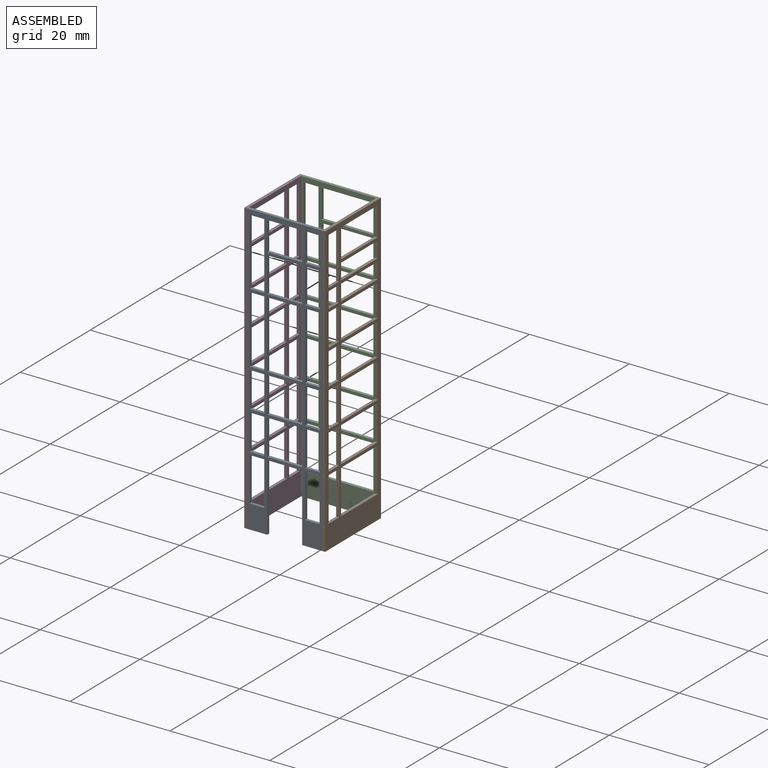
[diagram: assembled view]
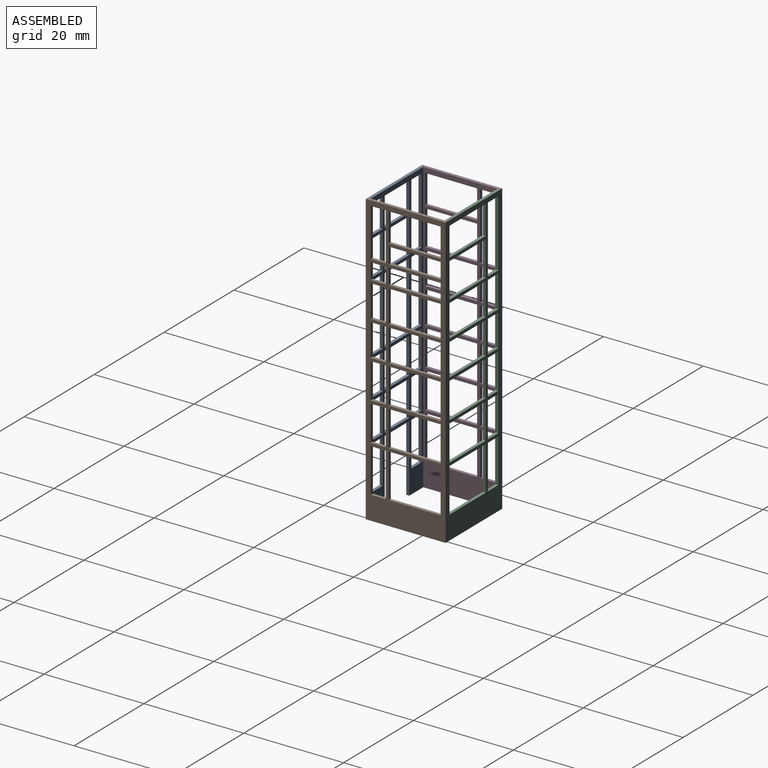
[diagram: assembled view, second angle]
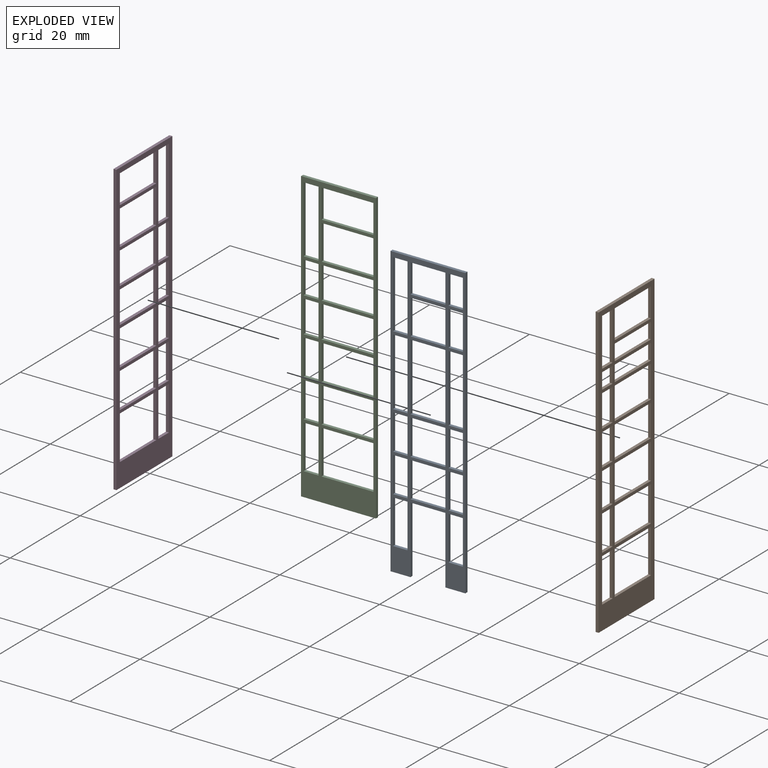
[diagram: exploded view]
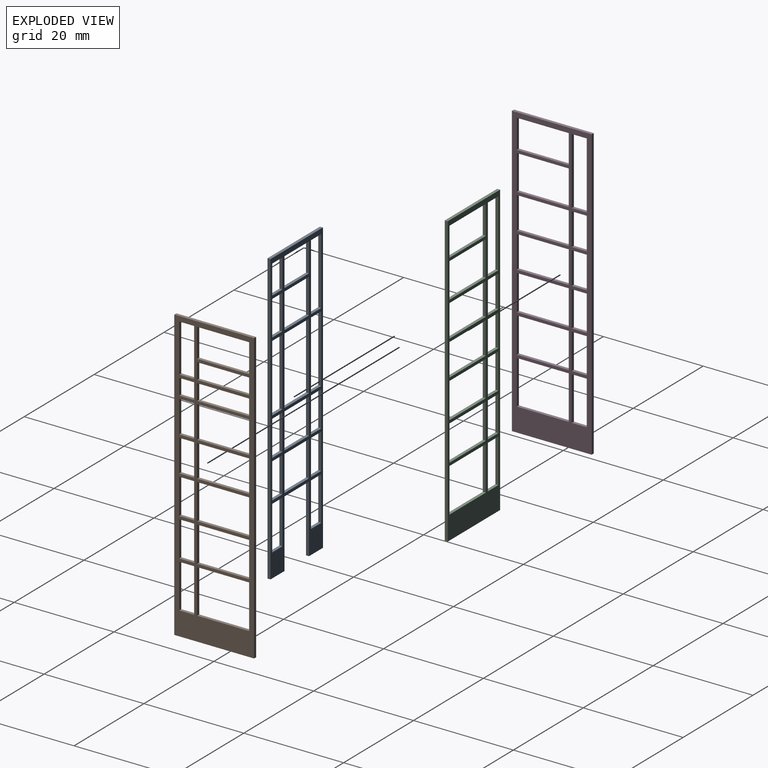
[diagram: exploded view, second angle]
ASSEMBLY  parts=4 mates=3
PART A: 74 faces, bbox 15x0.6x58 mm
  f0: plane 58x0.6mm, normal (-1,0,0), area 34.8mm2, adj f1,f2,f3,f66
  f1: plane 58x15mm, normal (0,-1,0), area 204.3mm2, adj f0,f3,f4,f5,f6,f7,f8,f9
  f2: plane 58x15mm, normal (0,1,0), area 204.3mm2, adj f0,f3,f4,f5,f6,f7,f8,f9
  f3: plane 4x0.6mm, normal (0,0,-1), area 2.4mm2, adj f0,f1,f2,f4
  f4: plane 13.5x0.6mm, normal (1,0,0), area 8.1mm2, adj f1,f2,f3,f5
  f5: plane 7x0.6mm, normal (0,0,-1), area 4.2mm2, adj f1,f2,f4,f6
  f6: plane 13.5x0.6mm, normal (-1,0,0), area 8.1mm2, adj f1,f2,f5,f7
  f7: plane 4x0.6mm, normal (0,0,-1), area 2.4mm2, adj f1,f2,f6,f73
  f8: plane 2.9x0.6mm, normal (0,0,1), area 1.7mm2, adj f1,f2,f9,f70
  f9: plane 8.8x0.6mm, normal (1,0,0), area 5.3mm2, adj f1,f2,f8,f10
  f10: plane 2.9x0.6mm, normal (0,0,-1), area 1.7mm2, adj f1,f2,f9,f70
  f11: plane 8.8x0.6mm, normal (1,0,0), area 5.3mm2, adj f1,f2,f12,f14
  f12: plane 2.9x0.6mm, normal (0,0,-1), area 1.7mm2, adj f1,f2,f11,f13
  f13: plane 8.8x0.6mm, normal (-1,0,0), area 5.3mm2, adj f1,f2,f12,f14
  f14: plane 2.9x0.6mm, normal (0,0,1), area 1.7mm2, adj f1,f2,f11,f13
  f15: plane 2.9x0.6mm, normal (0,0,-1), area 1.7mm2, adj f1,f2,f17,f69
  f16: plane 2.9x0.6mm, normal (0,0,1), area 1.7mm2, adj f1,f2,f17,f69
  f17: plane 13.5x0.6mm, normal (1,0,0), area 8.1mm2, adj f1,f2,f15,f16
  f18: plane 2.9x0.6mm, normal (0,0,-1), area 1.7mm2, adj f1,f2,f19,f21
  f19: plane 7.1x0.6mm, normal (-1,0,0), area 4.3mm2, adj f1,f2,f18,f20
  f20: plane 2.9x0.6mm, normal (0,0,1), area 1.7mm2, adj f1,f2,f19,f21
  f21: plane 7.1x0.6mm, normal (1,0,0), area 4.3mm2, adj f1,f2,f18,f20
  f22: plane 2.9x0.6mm, normal (0,0,-1), area 1.7mm2, adj f1,f2,f23,f25
  f23: plane 7.1x0.6mm, normal (-1,0,0), area 4.3mm2, adj f1,f2,f22,f24
  f24: plane 2.9x0.6mm, normal (0,0,1), area 1.7mm2, adj f1,f2,f23,f25
  f25: plane 7.1x0.6mm, normal (1,0,0), area 4.3mm2, adj f1,f2,f22,f24
  f26: plane 7x0.6mm, normal (0,0,-1), area 4.2mm2, adj f1,f2,f27,f29
  f27: plane 7.1x0.6mm, normal (-1,0,0), area 4.3mm2, adj f1,f2,f26,f28
  f28: plane 7x0.6mm, normal (0,0,1), area 4.2mm2, adj f1,f2,f27,f29
  f29: plane 7.1x0.6mm, normal (1,0,0), area 4.3mm2, adj f1,f2,f26,f28
  f30: plane 7x0.6mm, normal (0,0,-1), area 4.2mm2, adj f1,f2,f31,f33
  f31: plane 7.1x0.6mm, normal (-1,0,0), area 4.3mm2, adj f1,f2,f30,f32
  f32: plane 7x0.6mm, normal (0,0,1), area 4.2mm2, adj f1,f2,f31,f33
  f33: plane 7.1x0.6mm, normal (1,0,0), area 4.3mm2, adj f1,f2,f30,f32
  f34: plane 2.9x0.6mm, normal (0,0,-1), area 1.7mm2, adj f1,f2,f36,f72
  f35: plane 2.9x0.6mm, normal (0,0,1), area 1.7mm2, adj f1,f2,f36,f72
  f36: plane 7.1x0.6mm, normal (1,0,0), area 4.3mm2, adj f1,f2,f34,f35
  f37: plane 2.9x0.6mm, normal (0,0,-1), area 1.7mm2, adj f1,f2,f39,f71
  f38: plane 2.9x0.6mm, normal (0,0,1), area 1.7mm2, adj f1,f2,f39,f71
  f39: plane 7.1x0.6mm, normal (1,0,0), area 4.3mm2, adj f1,f2,f37,f38
  f40: plane 2.9x0.6mm, normal (0,0,-1), area 1.7mm2, adj f1,f2,f41,f43
  f41: plane 13.5x0.6mm, normal (-1,0,0), area 8.1mm2, adj f1,f2,f40,f42
  f42: plane 2.9x0.6mm, normal (0,0,1), area 1.7mm2, adj f1,f2,f41,f43
  f43: plane 13.5x0.6mm, normal (1,0,0), area 8.1mm2, adj f1,f2,f40,f42
  f44: plane 7x0.6mm, normal (0,0,-1), area 4.2mm2, adj f1,f2,f45,f47
  f45: plane 13.5x0.6mm, normal (-1,0,0), area 8.1mm2, adj f1,f2,f44,f46
  f46: plane 7x0.6mm, normal (0,0,1), area 4.2mm2, adj f1,f2,f45,f47
  f47: plane 13.5x0.6mm, normal (1,0,0), area 8.1mm2, adj f1,f2,f44,f46
  f48: plane 2.9x0.6mm, normal (0,0,-1), area 1.7mm2, adj f1,f2,f50,f68
  f49: plane 2.9x0.6mm, normal (0,0,1), area 1.7mm2, adj f1,f2,f50,f68
  f50: plane 7x0.6mm, normal (1,0,0), area 4.2mm2, adj f1,f2,f48,f49
  f51: plane 2.9x0.6mm, normal (0,0,-1), area 1.7mm2, adj f1,f2,f52,f54
  f52: plane 13.4x0.6mm, normal (-1,0,0), area 8mm2, adj f1,f2,f51,f53
  f53: plane 2.9x0.6mm, normal (0,0,1), area 1.7mm2, adj f1,f2,f52,f54
  f54: plane 13.4x0.6mm, normal (1,0,0), area 8mm2, adj f1,f2,f51,f53
  f55: plane 2.9x0.6mm, normal (0,0,-1), area 1.7mm2, adj f1,f2,f57,f67
  f56: plane 2.9x0.6mm, normal (0,0,1), area 1.7mm2, adj f1,f2,f57,f67
  f57: plane 5.8x0.6mm, normal (1,0,0), area 3.5mm2, adj f1,f2,f55,f56
  f58: plane 7x0.6mm, normal (0,0,-1), area 4.2mm2, adj f1,f2,f59,f61
  f59: plane 5.8x0.6mm, normal (-1,0,0), area 3.5mm2, adj f1,f2,f58,f60
  f60: plane 7x0.6mm, normal (0,0,1), area 4.2mm2, adj f1,f2,f59,f61
  f61: plane 5.8x0.6mm, normal (1,0,0), area 3.5mm2, adj f1,f2,f58,f60
  f62: plane 7x0.6mm, normal (0,0,-1), area 4.2mm2, adj f1,f2,f63,f65
  f63: plane 7x0.6mm, normal (-1,0,0), area 4.2mm2, adj f1,f2,f62,f64
  f64: plane 7x0.6mm, normal (0,0,1), area 4.2mm2, adj f1,f2,f63,f65
  f65: plane 7x0.6mm, normal (1,0,0), area 4.2mm2, adj f1,f2,f62,f64
  f66: plane 15x0.6mm, normal (0,0,1), area 9mm2, adj f0,f1,f2,f73
  f67: plane 5.8x0.6mm, normal (-1,0,0), area 3.5mm2, adj f1,f2,f55,f56
  f68: plane 7x0.6mm, normal (-1,0,0), area 4.2mm2, adj f1,f2,f48,f49
  f69: plane 13.5x0.6mm, normal (-1,0,0), area 8.1mm2, adj f1,f2,f15,f16
  f70: plane 8.8x0.6mm, normal (-1,0,0), area 5.3mm2, adj f1,f2,f8,f10
  f71: plane 7.1x0.6mm, normal (-1,0,0), area 4.3mm2, adj f1,f2,f37,f38
  f72: plane 7.1x0.6mm, normal (-1,0,0), area 4.3mm2, adj f1,f2,f34,f35
  f73: plane 58x0.6mm, normal (1,0,0), area 34.8mm2, adj f1,f2,f7,f66
PART B: 66 faces, bbox 16x0.6x58 mm
  f0: plane 58x16mm, normal (0,-1,0), area 281.7mm2, adj f2,f3,f4,f5,f6,f7,f8,f9
  f1: plane 58x16mm, normal (0,1,0), area 281.7mm2, adj f2,f3,f4,f5,f6,f7,f8,f9
  f2: plane 58x0.6mm, normal (-1,0,0), area 34.8mm2, adj f0,f1,f3,f56
  f3: plane 16x0.6mm, normal (0,0,-1), area 9.6mm2, adj f0,f1,f2,f65
  f4: plane 10.4x0.6mm, normal (0,0,1), area 6.2mm2, adj f0,f1,f5,f64
  f5: plane 8.8x0.6mm, normal (1,0,0), area 5.3mm2, adj f0,f1,f4,f6
  f6: plane 10.4x0.6mm, normal (0,0,-1), area 6.2mm2, adj f0,f1,f5,f64
  f7: plane 8.8x0.6mm, normal (1,0,0), area 5.3mm2, adj f0,f1,f8,f10
  f8: plane 3x0.6mm, normal (0,0,-1), area 1.8mm2, adj f0,f1,f7,f9
  f9: plane 8.8x0.6mm, normal (-1,0,0), area 5.3mm2, adj f0,f1,f8,f10
  f10: plane 3x0.6mm, normal (0,0,1), area 1.8mm2, adj f0,f1,f7,f9
  f11: plane 7.1x0.6mm, normal (1,0,0), area 4.3mm2, adj f0,f1,f12,f13
  f12: plane 3x0.6mm, normal (0,0,-1), area 1.8mm2, adj f0,f1,f11,f14
  f13: plane 3x0.6mm, normal (0,0,1), area 1.8mm2, adj f0,f1,f11,f14
  f14: plane 7.1x0.6mm, normal (-1,0,0), area 4.3mm2, adj f0,f1,f12,f13
  f15: plane 10.4x0.6mm, normal (0,0,-1), area 6.2mm2, adj f0,f1,f16,f59
  f16: plane 3.2x0.6mm, normal (1,0,0), area 1.9mm2, adj f0,f1,f15,f17
  f17: plane 10.4x0.6mm, normal (0,0,1), area 6.2mm2, adj f0,f1,f16,f59
  f18: plane 9.6x0.6mm, normal (1,0,0), area 5.8mm2, adj f0,f1,f19,f20
  f19: plane 3x0.6mm, normal (0,0,-1), area 1.8mm2, adj f0,f1,f18,f21
  f20: plane 3x0.6mm, normal (0,0,1), area 1.8mm2, adj f0,f1,f18,f21
  f21: plane 9.6x0.6mm, normal (-1,0,0), area 5.8mm2, adj f0,f1,f19,f20
  f22: plane 3.2x0.6mm, normal (1,0,0), area 1.9mm2, adj f0,f1,f23,f25
  f23: plane 3x0.6mm, normal (0,0,1), area 1.8mm2, adj f0,f1,f22,f24
  f24: plane 3.2x0.6mm, normal (-1,0,0), area 1.9mm2, adj f0,f1,f23,f25
  f25: plane 3x0.6mm, normal (0,0,-1), area 1.8mm2, adj f0,f1,f22,f24
  f26: plane 10.4x0.6mm, normal (0,0,-1), area 6.2mm2, adj f0,f1,f27,f62
  f27: plane 5.8x0.6mm, normal (1,0,0), area 3.5mm2, adj f0,f1,f26,f28
  f28: plane 10.4x0.6mm, normal (0,0,1), area 6.2mm2, adj f0,f1,f27,f62
  f29: plane 3x0.6mm, normal (0,0,-1), area 1.8mm2, adj f0,f1,f30,f31
  f30: plane 6.45x0.6mm, normal (-1,0,0), area 3.9mm2, adj f0,f1,f29,f32
  f31: plane 6.45x0.6mm, normal (1,0,0), area 3.9mm2, adj f0,f1,f29,f32
  f32: plane 3x0.6mm, normal (0,0,1), area 1.8mm2, adj f0,f1,f30,f31
  f33: plane 10.4x0.6mm, normal (0,0,-1), area 6.2mm2, adj f0,f1,f34,f60
  f34: plane 7.1x0.6mm, normal (1,0,0), area 4.3mm2, adj f0,f1,f33,f35
  f35: plane 10.4x0.6mm, normal (0,0,1), area 6.2mm2, adj f0,f1,f34,f60
  f36: plane 3x0.6mm, normal (0,0,1), area 1.8mm2, adj f0,f1,f37,f38
  f37: plane 7.1x0.6mm, normal (1,0,0), area 4.3mm2, adj f0,f1,f36,f39
  f38: plane 7.1x0.6mm, normal (-1,0,0), area 4.3mm2, adj f0,f1,f36,f39
  f39: plane 3x0.6mm, normal (0,0,-1), area 1.8mm2, adj f0,f1,f37,f38
  f40: plane 10.4x0.6mm, normal (0,0,-1), area 6.2mm2, adj f0,f1,f41,f63
  f41: plane 7.1x0.6mm, normal (1,0,0), area 4.3mm2, adj f0,f1,f40,f42
  f42: plane 10.4x0.6mm, normal (0,0,1), area 6.2mm2, adj f0,f1,f41,f63
  f43: plane 10.4x0.6mm, normal (0,0,1), area 6.2mm2, adj f0,f1,f45,f58
  f44: plane 10.4x0.6mm, normal (0,0,-1), area 6.2mm2, adj f0,f1,f45,f58
  f45: plane 3.2x0.6mm, normal (1,0,0), area 1.9mm2, adj f0,f1,f43,f44
  f46: plane 10.4x0.6mm, normal (0,0,-1), area 6.2mm2, adj f0,f1,f47,f57
  f47: plane 6.45x0.6mm, normal (1,0,0), area 3.9mm2, adj f0,f1,f46,f48
  f48: plane 10.4x0.6mm, normal (0,0,1), area 6.2mm2, adj f0,f1,f47,f57
  f49: plane 6.45x0.6mm, normal (1,0,0), area 3.9mm2, adj f0,f1,f50,f51
  f50: plane 3x0.6mm, normal (0,0,-1), area 1.8mm2, adj f0,f1,f49,f52
  f51: plane 3x0.6mm, normal (0,0,1), area 1.8mm2, adj f0,f1,f49,f52
  f52: plane 6.45x0.6mm, normal (-1,0,0), area 3.9mm2, adj f0,f1,f50,f51
  f53: plane 10.4x0.6mm, normal (0,0,-1), area 6.2mm2, adj f0,f1,f54,f61
  f54: plane 6.45x0.6mm, normal (1,0,0), area 3.9mm2, adj f0,f1,f53,f55
  f55: plane 10.4x0.6mm, normal (0,0,1), area 6.2mm2, adj f0,f1,f54,f61
  f56: plane 16x0.6mm, normal (0,0,1), area 9.6mm2, adj f0,f1,f2,f65
  f57: plane 6.45x0.6mm, normal (-1,0,0), area 3.9mm2, adj f0,f1,f46,f48
  f58: plane 3.2x0.6mm, normal (-1,0,0), area 1.9mm2, adj f0,f1,f43,f44
  f59: plane 3.2x0.6mm, normal (-1,0,0), area 1.9mm2, adj f0,f1,f15,f17
  f60: plane 7.1x0.6mm, normal (-1,0,0), area 4.3mm2, adj f0,f1,f33,f35
  f61: plane 6.45x0.6mm, normal (-1,0,0), area 3.9mm2, adj f0,f1,f53,f55
  f62: plane 5.8x0.6mm, normal (-1,0,0), area 3.5mm2, adj f0,f1,f26,f28
  f63: plane 7.1x0.6mm, normal (-1,0,0), area 4.3mm2, adj f0,f1,f40,f42
  f64: plane 8.8x0.6mm, normal (-1,0,0), area 5.3mm2, adj f0,f1,f4,f6
  f65: plane 58x0.6mm, normal (1,0,0), area 34.8mm2, adj f0,f1,f3,f56
PART C: 58 faces, bbox 15x0.6x58 mm
  f0: plane 58x15mm, normal (0,-1,0), area 215.6mm2, adj f2,f3,f4,f5,f6,f7,f8,f9
  f1: plane 58x15mm, normal (0,1,0), area 215.6mm2, adj f2,f3,f4,f5,f6,f7,f8,f9
  f2: plane 10.4x0.6mm, normal (0,0,1), area 6.2mm2, adj f0,f1,f3,f56
  f3: plane 8.8x0.6mm, normal (1,0,0), area 5.3mm2, adj f0,f1,f2,f4
  f4: plane 10.4x0.6mm, normal (0,0,-1), area 6.2mm2, adj f0,f1,f3,f56
  f5: plane 58x0.6mm, normal (-1,0,0), area 34.8mm2, adj f0,f1,f6,f49
  f6: plane 15x0.6mm, normal (0,0,-1), area 9mm2, adj f0,f1,f5,f57
  f7: plane 8.8x0.6mm, normal (1,0,0), area 5.3mm2, adj f0,f1,f8,f10
  f8: plane 3x0.6mm, normal (0,0,-1), area 1.8mm2, adj f0,f1,f7,f9
  f9: plane 8.8x0.6mm, normal (-1,0,0), area 5.3mm2, adj f0,f1,f8,f10
  f10: plane 3x0.6mm, normal (0,0,1), area 1.8mm2, adj f0,f1,f7,f9
  f11: plane 7.1x0.6mm, normal (1,0,0), area 4.3mm2, adj f0,f1,f12,f13
  f12: plane 3x0.6mm, normal (0,0,-1), area 1.8mm2, adj f0,f1,f11,f14
  f13: plane 3x0.6mm, normal (0,0,1), area 1.8mm2, adj f0,f1,f11,f14
  f14: plane 7.1x0.6mm, normal (-1,0,0), area 4.3mm2, adj f0,f1,f12,f13
  f15: plane 7x0.6mm, normal (1,0,0), area 4.2mm2, adj f0,f1,f16,f17
  f16: plane 10.4x0.6mm, normal (0,0,-1), area 6.2mm2, adj f0,f1,f15,f55
  f17: plane 10.4x0.6mm, normal (0,0,1), area 6.2mm2, adj f0,f1,f15,f55
  f18: plane 10.4x0.6mm, normal (0,0,-1), area 6.2mm2, adj f0,f1,f19,f54
  f19: plane 5.8x0.6mm, normal (1,0,0), area 3.5mm2, adj f0,f1,f18,f20
  f20: plane 10.4x0.6mm, normal (0,0,1), area 6.2mm2, adj f0,f1,f19,f54
  f21: plane 10.4x0.6mm, normal (0,0,-1), area 6.2mm2, adj f0,f1,f22,f53
  f22: plane 6.45x0.6mm, normal (1,0,0), area 3.9mm2, adj f0,f1,f21,f23
  f23: plane 10.4x0.6mm, normal (0,0,1), area 6.2mm2, adj f0,f1,f22,f53
  f24: plane 6.45x0.6mm, normal (1,0,0), area 3.9mm2, adj f0,f1,f25,f26
  f25: plane 3x0.6mm, normal (0,0,-1), area 1.8mm2, adj f0,f1,f24,f27
  f26: plane 3x0.6mm, normal (0,0,1), area 1.8mm2, adj f0,f1,f24,f27
  f27: plane 6.45x0.6mm, normal (-1,0,0), area 3.9mm2, adj f0,f1,f25,f26
  f28: plane 6.45x0.6mm, normal (1,0,0), area 3.9mm2, adj f0,f1,f29,f30
  f29: plane 3x0.6mm, normal (0,0,-1), area 1.8mm2, adj f0,f1,f28,f31
  f30: plane 3x0.6mm, normal (0,0,1), area 1.8mm2, adj f0,f1,f28,f31
  f31: plane 6.45x0.6mm, normal (-1,0,0), area 3.9mm2, adj f0,f1,f29,f30
  f32: plane 10.4x0.6mm, normal (0,0,-1), area 6.2mm2, adj f0,f1,f33,f52
  f33: plane 7.1x0.6mm, normal (1,0,0), area 4.3mm2, adj f0,f1,f32,f34
  f34: plane 10.4x0.6mm, normal (0,0,1), area 6.2mm2, adj f0,f1,f33,f52
  f35: plane 3x0.6mm, normal (0,0,1), area 1.8mm2, adj f0,f1,f36,f37
  f36: plane 13.4x0.6mm, normal (1,0,0), area 8mm2, adj f0,f1,f35,f38
  f37: plane 13.4x0.6mm, normal (-1,0,0), area 8mm2, adj f0,f1,f35,f38
  f38: plane 3x0.6mm, normal (0,0,-1), area 1.8mm2, adj f0,f1,f36,f37
  f39: plane 10.4x0.6mm, normal (0,0,-1), area 6.2mm2, adj f0,f1,f40,f51
  f40: plane 7.1x0.6mm, normal (1,0,0), area 4.3mm2, adj f0,f1,f39,f41
  f41: plane 10.4x0.6mm, normal (0,0,1), area 6.2mm2, adj f0,f1,f40,f51
  f42: plane 7.1x0.6mm, normal (1,0,0), area 4.3mm2, adj f0,f1,f43,f44
  f43: plane 3x0.6mm, normal (0,0,-1), area 1.8mm2, adj f0,f1,f42,f45
  f44: plane 3x0.6mm, normal (0,0,1), area 1.8mm2, adj f0,f1,f42,f45
  f45: plane 7.1x0.6mm, normal (-1,0,0), area 4.3mm2, adj f0,f1,f43,f44
  f46: plane 6.45x0.6mm, normal (1,0,0), area 3.9mm2, adj f0,f1,f47,f48
  f47: plane 10.4x0.6mm, normal (0,0,-1), area 6.2mm2, adj f0,f1,f46,f50
  f48: plane 10.4x0.6mm, normal (0,0,1), area 6.2mm2, adj f0,f1,f46,f50
  f49: plane 15x0.6mm, normal (0,0,1), area 9mm2, adj f0,f1,f5,f57
  f50: plane 6.45x0.6mm, normal (-1,0,0), area 3.9mm2, adj f0,f1,f47,f48
  f51: plane 7.1x0.6mm, normal (-1,0,0), area 4.3mm2, adj f0,f1,f39,f41
  f52: plane 7.1x0.6mm, normal (-1,0,0), area 4.3mm2, adj f0,f1,f32,f34
  f53: plane 6.45x0.6mm, normal (-1,0,0), area 3.9mm2, adj f0,f1,f21,f23
  f54: plane 5.8x0.6mm, normal (-1,0,0), area 3.5mm2, adj f0,f1,f18,f20
  f55: plane 7x0.6mm, normal (-1,0,0), area 4.2mm2, adj f0,f1,f16,f17
  f56: plane 8.8x0.6mm, normal (-1,0,0), area 5.3mm2, adj f0,f1,f2,f4
  f57: plane 58x0.6mm, normal (1,0,0), area 34.8mm2, adj f0,f1,f6,f49
PART D: 58 faces, bbox 16x0.6x58 mm
  f0: plane 58x16mm, normal (0,-1,0), area 273.6mm2, adj f2,f3,f4,f5,f6,f7,f8,f9
  f1: plane 58x16mm, normal (0,1,0), area 273.6mm2, adj f2,f3,f4,f5,f6,f7,f8,f9
  f2: plane 8.8x0.6mm, normal (1,0,0), area 5.3mm2, adj f0,f1,f3,f10
  f3: plane 3x0.6mm, normal (0,0,-1), area 1.8mm2, adj f0,f1,f2,f4
  f4: plane 8.8x0.6mm, normal (-1,0,0), area 5.3mm2, adj f0,f1,f3,f10
  f5: plane 10.4x0.6mm, normal (0,0,-1), area 6.2mm2, adj f0,f1,f6,f56
  f6: plane 8.8x0.6mm, normal (-1,0,0), area 5.3mm2, adj f0,f1,f5,f7
  f7: plane 10.4x0.6mm, normal (0,0,1), area 6.2mm2, adj f0,f1,f6,f56
  f8: plane 16x0.6mm, normal (0,0,-1), area 9.6mm2, adj f0,f1,f9,f57
  f9: plane 58x0.6mm, normal (1,0,0), area 34.8mm2, adj f0,f1,f8,f49
  f10: plane 3x0.6mm, normal (0,0,1), area 1.8mm2, adj f0,f1,f2,f4
  f11: plane 10.4x0.6mm, normal (0,0,-1), area 6.2mm2, adj f0,f1,f13,f55
  f12: plane 10.4x0.6mm, normal (0,0,1), area 6.2mm2, adj f0,f1,f13,f55
  f13: plane 7.1x0.6mm, normal (-1,0,0), area 4.3mm2, adj f0,f1,f11,f12
  f14: plane 10.4x0.6mm, normal (0,0,-1), area 6.2mm2, adj f0,f1,f16,f54
  f15: plane 10.4x0.6mm, normal (0,0,1), area 6.2mm2, adj f0,f1,f16,f54
  f16: plane 5.8x0.6mm, normal (-1,0,0), area 3.5mm2, adj f0,f1,f14,f15
  f17: plane 3x0.6mm, normal (0,0,1), area 1.8mm2, adj f0,f1,f18,f19
  f18: plane 13.4x0.6mm, normal (1,0,0), area 8mm2, adj f0,f1,f17,f20
  f19: plane 13.4x0.6mm, normal (-1,0,0), area 8mm2, adj f0,f1,f17,f20
  f20: plane 3x0.6mm, normal (0,0,-1), area 1.8mm2, adj f0,f1,f18,f19
  f21: plane 10.4x0.6mm, normal (0,0,-1), area 6.2mm2, adj f0,f1,f23,f53
  f22: plane 10.4x0.6mm, normal (0,0,1), area 6.2mm2, adj f0,f1,f23,f53
  f23: plane 6.45x0.6mm, normal (-1,0,0), area 3.9mm2, adj f0,f1,f21,f22
  f24: plane 7.1x0.6mm, normal (1,0,0), area 4.3mm2, adj f0,f1,f25,f26
  f25: plane 3x0.6mm, normal (0,0,-1), area 1.8mm2, adj f0,f1,f24,f27
  f26: plane 3x0.6mm, normal (0,0,1), area 1.8mm2, adj f0,f1,f24,f27
  f27: plane 7.1x0.6mm, normal (-1,0,0), area 4.3mm2, adj f0,f1,f25,f26
  f28: plane 10.4x0.6mm, normal (0,0,-1), area 6.2mm2, adj f0,f1,f30,f52
  f29: plane 10.4x0.6mm, normal (0,0,1), area 6.2mm2, adj f0,f1,f30,f52
  f30: plane 7.1x0.6mm, normal (-1,0,0), area 4.3mm2, adj f0,f1,f28,f29
  f31: plane 7.1x0.6mm, normal (1,0,0), area 4.3mm2, adj f0,f1,f32,f33
  f32: plane 3x0.6mm, normal (0,0,-1), area 1.8mm2, adj f0,f1,f31,f34
  f33: plane 3x0.6mm, normal (0,0,1), area 1.8mm2, adj f0,f1,f31,f34
  f34: plane 7.1x0.6mm, normal (-1,0,0), area 4.3mm2, adj f0,f1,f32,f33
  f35: plane 10.4x0.6mm, normal (0,0,1), area 6.2mm2, adj f0,f1,f36,f51
  f36: plane 7x0.6mm, normal (-1,0,0), area 4.2mm2, adj f0,f1,f35,f37
  f37: plane 10.4x0.6mm, normal (0,0,-1), area 6.2mm2, adj f0,f1,f36,f51
  f38: plane 6.45x0.6mm, normal (1,0,0), area 3.9mm2, adj f0,f1,f39,f40
  f39: plane 3x0.6mm, normal (0,0,-1), area 1.8mm2, adj f0,f1,f38,f41
  f40: plane 3x0.6mm, normal (0,0,1), area 1.8mm2, adj f0,f1,f38,f41
  f41: plane 6.45x0.6mm, normal (-1,0,0), area 3.9mm2, adj f0,f1,f39,f40
  f42: plane 10.4x0.6mm, normal (0,0,-1), area 6.2mm2, adj f0,f1,f44,f50
  f43: plane 10.4x0.6mm, normal (0,0,1), area 6.2mm2, adj f0,f1,f44,f50
  f44: plane 6.45x0.6mm, normal (-1,0,0), area 3.9mm2, adj f0,f1,f42,f43
  f45: plane 6.45x0.6mm, normal (1,0,0), area 3.9mm2, adj f0,f1,f46,f47
  f46: plane 3x0.6mm, normal (0,0,-1), area 1.8mm2, adj f0,f1,f45,f48
  f47: plane 3x0.6mm, normal (0,0,1), area 1.8mm2, adj f0,f1,f45,f48
  f48: plane 6.45x0.6mm, normal (-1,0,0), area 3.9mm2, adj f0,f1,f46,f47
  f49: plane 16x0.6mm, normal (0,0,1), area 9.6mm2, adj f0,f1,f9,f57
  f50: plane 6.45x0.6mm, normal (1,0,0), area 3.9mm2, adj f0,f1,f42,f43
  f51: plane 7x0.6mm, normal (1,0,0), area 4.2mm2, adj f0,f1,f35,f37
  f52: plane 7.1x0.6mm, normal (1,0,0), area 4.3mm2, adj f0,f1,f28,f29
  f53: plane 6.45x0.6mm, normal (1,0,0), area 3.9mm2, adj f0,f1,f21,f22
  f54: plane 5.8x0.6mm, normal (1,0,0), area 3.5mm2, adj f0,f1,f14,f15
  f55: plane 7.1x0.6mm, normal (1,0,0), area 4.3mm2, adj f0,f1,f11,f12
  f56: plane 8.8x0.6mm, normal (1,0,0), area 5.3mm2, adj f0,f1,f5,f7
  f57: plane 58x0.6mm, normal (-1,0,0), area 34.8mm2, adj f0,f1,f8,f49
PLACE A t=(-13.46,10.52,-8.51)mm fixed
PLACE B rot(axis=(0,0,1),90deg) t=(1.54,9.92,-8.51)mm
PLACE C t=(-13.46,25.92,-8.51)mm
PLACE D rot(axis=(0,0,1),90deg) t=(-14.06,10.92,-8.51)mm
MATE fastened B.f1 <-> A.f73  axis (-1,0,0) through (1.54,9.92,-8.51)mm
MATE fastened D.f0 <-> A.f0  axis (1,0,0) through (-13.46,9.92,-8.51)mm
MATE fastened C.f57 <-> B.f1  axis (1,0,0) through (1.54,25.92,-8.51)mm
